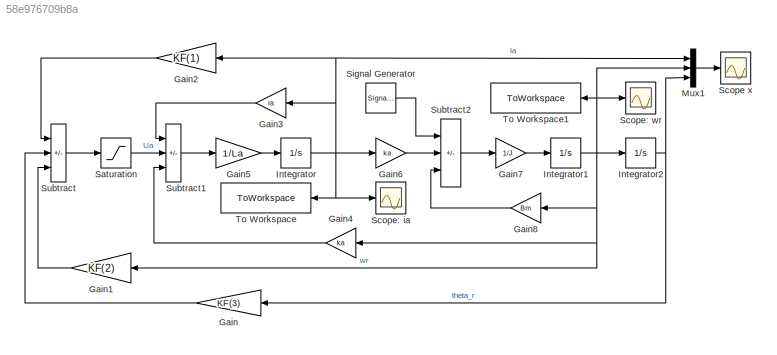
MODEL slx_58e976709b8a
KIND model
CONFIG AbsTol = auto
CONFIG EnableMultiTasking = on
CONFIG FixedStep = auto
CONFIG MaxStep = auto
CONFIG MinStep = auto
CONFIG RelTol = 1e-3
CONFIG SampleTimeConstraint = Unconstrained
CONFIG SolverName = ode45
CONFIG StartTime = 0.0
CONFIG StopTime = 0.06
BLOCK [Gain] Gain
  Gain = KF(3)
BLOCK [Gain] Gain1
  Gain = KF(2)
  NameLocation = top
BLOCK [Gain] Gain2
  Gain = KF(1)
  NameLocation = top
BLOCK [Gain] Gain3
  Gain = ra
  NameLocation = top
BLOCK [Gain] Gain4
  Gain = ka
  NameLocation = top
BLOCK [Gain] Gain5
  Gain = 1/La
BLOCK [Gain] Gain6
  Gain = ka
BLOCK [Gain] Gain7
  Gain = 1/J
BLOCK [Gain] Gain8
  Gain = Bm
  NameLocation = top
BLOCK [Integrator] Integrator
  InitialCondition = 10
BLOCK [Integrator] Integrator1
  InitialCondition = 25
BLOCK [Integrator] Integrator2
  InitialCondition = 1
BLOCK [Mux] Mux1
  DisplayOption = bar
  Inputs = 3
BLOCK [Saturate] Saturation
  LowerLimit = -u_lim
  UpperLimit = u_lim
BLOCK [Scope] Scope x
  Floating = off
  NumInputPorts = 1
  ScopeSpecificationString = Simulink.scopes.TimeScopeBlockCfg('CurrentConfiguration', extmgr.ConfigurationSet(extmgr.Configuration('Core','General UI',true),extmgr.Configuration('Core','Source UI',true),extmgr.Configuration('Sources','WiredSimulink',true,'DataLoggingSaveFormat','Array','DataLoggingDecimation','1','DataLoggingDecimateData',true),extmgr.Configuration('Visuals','Time Domain',true,'SerializedDisplays',{struct('M...<+1982ch>
BLOCK [Scope] Scope: ia
  Floating = off
  NumInputPorts = 1
  ScopeSpecificationString = Simulink.scopes.TimeScopeBlockCfg('CurrentConfiguration', extmgr.ConfigurationSet(extmgr.Configuration('Core','General UI',true),extmgr.Configuration('Core','Source UI',true),extmgr.Configuration('Sources','WiredSimulink',true,'DataLoggingVariableName','ScopeData2'),extmgr.Configuration('Visuals','Time Domain',true),extmgr.Configuration('Tools','Plot Navigation',true),extmgr.Configuration('Tools',...<+40ch>
BLOCK [Scope] Scope: wr
  Floating = off
  NumInputPorts = 1
  ScopeSpecificationString = Simulink.scopes.TimeScopeBlockCfg('CurrentConfiguration', extmgr.ConfigurationSet(extmgr.Configuration('Core','General UI',true),extmgr.Configuration('Core','Source UI',true),extmgr.Configuration('Sources','WiredSimulink',true,'DataLoggingSaveFormat','Array','DataLoggingDecimation','1','DataLoggingDecimateData',true,'DataLoggingVariableName','ScopeData1'),extmgr.Configuration('Visuals','Time Domai...<+1704ch>
BLOCK [SignalGenerator] Signal Generator
  Units = rad/sec
BLOCK [Sum] Subtract
  IconShape = rectangular
  Inputs = ---
BLOCK [Sum] Subtract1
  IconShape = rectangular
  Inputs = -+-
BLOCK [Sum] Subtract2
  IconShape = rectangular
  Inputs = ++-
BLOCK [ToWorkspace] To Workspace
  FixptAsFi = on
  MaxDataPoints = inf
  NameLocation = top
  SampleTime = -1
  SaveFormat = Timeseries
  VariableName = sim_ia
BLOCK [ToWorkspace] To Workspace1
  FixptAsFi = on
  MaxDataPoints = inf
  NameLocation = top
  SampleTime = -1
  SaveFormat = Timeseries
  VariableName = sim_wr
LINE Gain1:1 -> Subtract:3
LINE Gain2:1 -> Subtract:1
LINE Gain3:1 -> Subtract1:1
LINE Gain4:1 -> Subtract1:3
LINE Gain5:1 -> Integrator:1
LINE Gain6:1 -> Subtract2:2
LINE Gain7:1 -> Integrator1:1
LINE Gain8:1 -> Subtract2:3
LINE Gain:1 -> Subtract:2
NET Integrator1:1 -> Gain1:1, Gain4:1, Gain8:1, Integrator2:1, Mux1:2, Scope: wr:1, To Workspace1:1
NET Integrator2:1 -> Gain:1, Mux1:3
NET Integrator:1 -> Gain2:1, Gain3:1, Gain6:1, Mux1:1, Scope: ia:1, To Workspace:1
LINE Mux1:1 -> Scope x:1
LINE Saturation:1 -> Subtract1:2
LINE Signal Generator:1 -> Subtract2:1
LINE Subtract1:1 -> Gain5:1
LINE Subtract2:1 -> Gain7:1
LINE Subtract:1 -> Saturation:1
note: NET lines group one-source signal fan-out (src -> all destinations, sorted); 1:1 wires keep LINE
